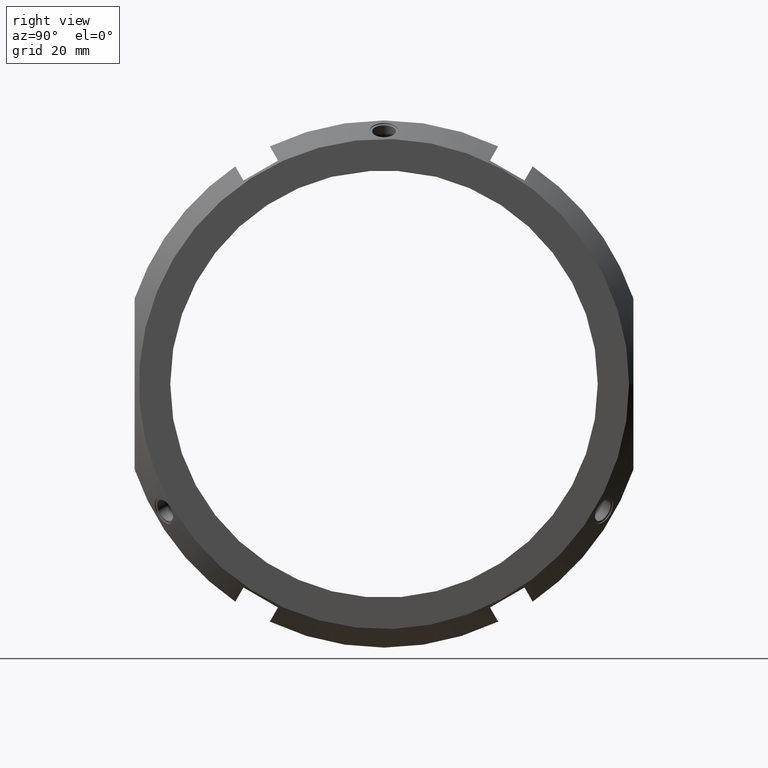
[diagram: clean part render]
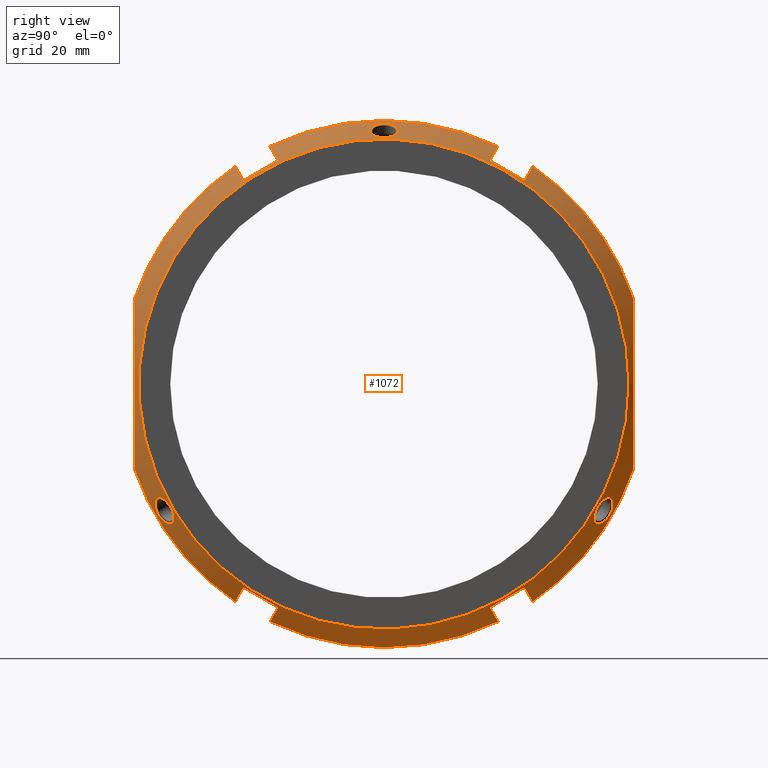
[diagram: same view with one face highlighted and labeled with its STEP entity id]
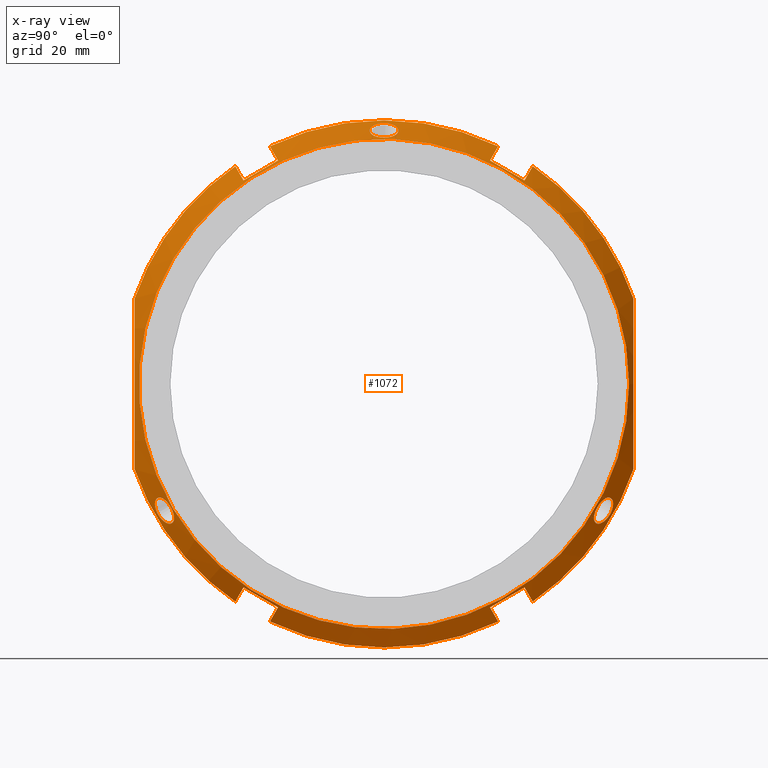
[diagram: x-ray of the same camera — body ghosted, the highlighted face saturated]
A machine part, right view. The second image highlights one B-rep face of the part: STEP entity #1072.
The next image is the same camera in x-ray: the body ghosted, the highlighted face saturated — about 0% of this face is hidden behind the body in this view.
In plain terms, the highlighted conical surface has half-angle 30 deg.
Its self-contained STEP definition (entity closure, byte-faithful):
#90=CARTESIAN_POINT('',(30.644194295349262,49.312177826491151,-71.411197427353898));
#91=VERTEX_POINT('',#90);
#98=CARTESIAN_POINT('',(30.644194295349308,37.187822173509019,-78.411197427353898));
#99=VERTEX_POINT('',#98);
#100=CARTESIAN_POINT('',(30.644194295349308,37.187822173509019,-78.411197427353898));
#101=CARTESIAN_POINT('',(31.622158986817794,43.250000000000369,-74.911197427353727));
#102=CARTESIAN_POINT('',(30.644194295349262,49.312177826491151,-71.411197427353898));
#110=(BOUNDED_CURVE()B_SPLINE_CURVE(2,(#100,#101,#102),.UNSPECIFIED.,.F.,.U.)B_SPLINE_CURVE_WITH_KNOTS((3,3),(2.679441139017706,4.196604236050768),.UNSPECIFIED.)CURVE()GEOMETRIC_REPRESENTATION_ITEM()RATIONAL_B_SPLINE_CURVE((1.032993615311318,1.036370546538393,1.032993615311318))REPRESENTATION_ITEM(''));
#111=EDGE_CURVE('',#99,#91,#110,.T.);
#143=CARTESIAN_POINT('',(20.741669750802277,40.05519959243864,-83.377640801415708));
#144=VERTEX_POINT('',#143);
#145=CARTESIAN_POINT('',(20.741669750802245,40.055199592438655,-83.377640801415737));
#146=CARTESIAN_POINT('',(25.85179467139222,38.575791367520466,-80.815230590722166));
#147=CARTESIAN_POINT('',(30.644194295349308,37.187822173509005,-78.411197427353898));
#155=(BOUNDED_CURVE()B_SPLINE_CURVE(2,(#145,#146,#147),.UNSPECIFIED.,.F.,.U.)B_SPLINE_CURVE_WITH_KNOTS((3,3),(0.0,1.144322531640701),.UNSPECIFIED.)CURVE()GEOMETRIC_REPRESENTATION_ITEM()RATIONAL_B_SPLINE_CURVE((1.0,1.000511983654657,1.0))REPRESENTATION_ITEM(''));
#156=EDGE_CURVE('',#144,#99,#155,.T.);
#187=CARTESIAN_POINT('',(20.741669750802252,52.179555245420801,-76.377640801415708));
#188=VERTEX_POINT('',#187);
#195=CARTESIAN_POINT('',(30.644194295349262,49.312177826491151,-71.411197427353898));
#196=CARTESIAN_POINT('',(25.851794671363805,50.700147020510833,-73.815230590736405));
#197=CARTESIAN_POINT('',(20.741669750802245,52.179555245420786,-76.377640801415723));
#205=(BOUNDED_CURVE()B_SPLINE_CURVE(2,(#195,#196,#197),.UNSPECIFIED.,.F.,.U.)B_SPLINE_CURVE_WITH_KNOTS((3,3),(0.0,1.144322531640696),.UNSPECIFIED.)CURVE()GEOMETRIC_REPRESENTATION_ITEM()RATIONAL_B_SPLINE_CURVE((1.0,1.000511983600446,1.0))REPRESENTATION_ITEM(''));
#206=EDGE_CURVE('',#91,#188,#205,.T.);
#234=CARTESIAN_POINT('',(30.644194295349273,-49.312177826491009,-71.411197427353997));
#235=VERTEX_POINT('',#234);
#242=CARTESIAN_POINT('',(20.741669750802252,-52.179555245420637,-76.377640801415808));
#243=VERTEX_POINT('',#242);
#244=CARTESIAN_POINT('',(20.741669750802245,-52.179555245420637,-76.377640801415808));
#245=CARTESIAN_POINT('',(25.851794684423552,-50.70014701672909,-73.815230584186565));
#246=CARTESIAN_POINT('',(30.644194295349273,-49.312177826491009,-71.411197427353997));
#254=(BOUNDED_CURVE()B_SPLINE_CURVE(2,(#244,#245,#246),.UNSPECIFIED.,.F.,.U.)B_SPLINE_CURVE_WITH_KNOTS((3,3),(0.0,1.144322531640696),.UNSPECIFIED.)CURVE()GEOMETRIC_REPRESENTATION_ITEM()RATIONAL_B_SPLINE_CURVE((1.0,1.000511983826605,1.0))REPRESENTATION_ITEM(''));
#255=EDGE_CURVE('',#243,#235,#254,.T.);
#288=CARTESIAN_POINT('',(20.741669750802252,-40.055199592438491,-83.377640801415808));
#289=VERTEX_POINT('',#288);
#296=CARTESIAN_POINT('',(30.644194295349273,-37.187822173508863,-78.411197427353983));
#297=VERTEX_POINT('',#296);
#298=CARTESIAN_POINT('',(30.644194295349266,-37.187822173508863,-78.411197427353983));
#299=CARTESIAN_POINT('',(25.851794679649846,-38.57579136512922,-80.815230586580725));
#300=CARTESIAN_POINT('',(20.741669750802245,-40.055199592438491,-83.377640801415808));
#308=(BOUNDED_CURVE()B_SPLINE_CURVE(2,(#298,#299,#300),.UNSPECIFIED.,.F.,.U.)B_SPLINE_CURVE_WITH_KNOTS((3,3),(0.0,1.144322531640696),.UNSPECIFIED.)CURVE()GEOMETRIC_REPRESENTATION_ITEM()RATIONAL_B_SPLINE_CURVE((1.0,1.000511983735601,1.0))REPRESENTATION_ITEM(''));
#309=EDGE_CURVE('',#297,#289,#308,.T.);
#339=CARTESIAN_POINT('',(30.644194295349273,-49.312177826491009,-71.411197427353997));
#340=CARTESIAN_POINT('',(31.622158986817798,-43.249999999999666,-74.911197427354153));
#341=CARTESIAN_POINT('',(30.644194295349273,-37.187822173508863,-78.411197427353983));
#349=(BOUNDED_CURVE()B_SPLINE_CURVE(2,(#339,#340,#341),.UNSPECIFIED.,.F.,.U.)B_SPLINE_CURVE_WITH_KNOTS((3,3),(2.679441139017692,4.196604236050759),.UNSPECIFIED.)CURVE()GEOMETRIC_REPRESENTATION_ITEM()RATIONAL_B_SPLINE_CURVE((1.03299361531132,1.036370546538395,1.03299361531132))REPRESENTATION_ITEM(''));
#350=EDGE_CURVE('',#235,#297,#349,.T.);
#557=CARTESIAN_POINT('',(20.741669750802259,0.0,0.0));
#558=DIRECTION('',(1.0,0.0,0.0));
#559=DIRECTION('',(0.0,1.0,0.0));
#560=AXIS2_PLACEMENT_3D('',#557,#558,#559);
#561=CIRCLE('',#560,92.5);
#562=EDGE_CURVE('',#289,#144,#561,.T.);
#575=CARTESIAN_POINT('',(20.741669750802259,-87.500000000000014,-29.999999999999943));
#576=VERTEX_POINT('',#575);
#577=CARTESIAN_POINT('',(20.741669750802259,0.0,0.0));
#578=DIRECTION('',(1.0,0.0,0.0));
#579=DIRECTION('',(0.0,1.0,0.0));
#580=AXIS2_PLACEMENT_3D('',#577,#578,#579);
#581=CIRCLE('',#580,92.5);
#582=EDGE_CURVE('',#576,#243,#581,.T.);
#600=CARTESIAN_POINT('',(30.644194295349308,37.187822173509019,78.411197427353898));
#601=VERTEX_POINT('',#600);
#608=CARTESIAN_POINT('',(30.644194295349262,49.312177826491151,71.411197427353898));
#609=VERTEX_POINT('',#608);
#610=CARTESIAN_POINT('',(30.644194295349262,49.312177826491151,71.411197427353898));
#611=CARTESIAN_POINT('',(31.622158986817809,43.249999999999815,74.911197427354068));
#612=CARTESIAN_POINT('',(30.644194295349308,37.187822173509019,78.411197427353898));
#620=(BOUNDED_CURVE()B_SPLINE_CURVE(2,(#610,#611,#612),.UNSPECIFIED.,.F.,.U.)B_SPLINE_CURVE_WITH_KNOTS((3,3),(2.679441139017681,4.196604236050743),.UNSPECIFIED.)CURVE()GEOMETRIC_REPRESENTATION_ITEM()RATIONAL_B_SPLINE_CURVE((1.032993615311318,1.036370546538393,1.032993615311318))REPRESENTATION_ITEM(''));
#621=EDGE_CURVE('',#609,#601,#620,.T.);
#639=CARTESIAN_POINT('',(20.741669750802252,52.179555245420801,76.377640801415708));
#640=VERTEX_POINT('',#639);
#641=CARTESIAN_POINT('',(20.741669750802245,52.179555245420786,76.377640801415723));
#642=CARTESIAN_POINT('',(25.851794666776993,50.700147021838681,73.81523059303629));
#643=CARTESIAN_POINT('',(30.644194295349262,49.312177826491151,71.411197427353898));
#651=(BOUNDED_CURVE()B_SPLINE_CURVE(2,(#641,#642,#643),.UNSPECIFIED.,.F.,.U.)B_SPLINE_CURVE_WITH_KNOTS((3,3),(0.0,1.117847285030496),.UNSPECIFIED.)CURVE()GEOMETRIC_REPRESENTATION_ITEM()RATIONAL_B_SPLINE_CURVE((1.0,1.000892190321801,1.000760168768414))REPRESENTATION_ITEM(''));
#652=EDGE_CURVE('',#640,#609,#651,.T.);
#669=CARTESIAN_POINT('',(20.741669750802277,40.05519959243864,83.377640801415708));
#670=VERTEX_POINT('',#669);
#677=CARTESIAN_POINT('',(30.644194295349308,37.187822173509019,78.411197427353898));
#678=CARTESIAN_POINT('',(25.851794663935088,38.575791369679862,80.815230594462335));
#679=CARTESIAN_POINT('',(20.741669750802245,40.055199592438655,83.377640801415737));
#687=(BOUNDED_CURVE()B_SPLINE_CURVE(2,(#677,#678,#679),.UNSPECIFIED.,.F.,.U.)B_SPLINE_CURVE_WITH_KNOTS((3,3),(0.829664851619919,1.94751213712013),.UNSPECIFIED.)CURVE()GEOMETRIC_REPRESENTATION_ITEM()RATIONAL_B_SPLINE_CURVE((1.000760168721978,1.000892190267805,1.0))REPRESENTATION_ITEM(''));
#688=EDGE_CURVE('',#601,#670,#687,.T.);
#700=CARTESIAN_POINT('',(30.644194295349273,-49.312177826491009,71.411197427353997));
#701=VERTEX_POINT('',#700);
#708=CARTESIAN_POINT('',(30.644194295349273,-37.187822173508863,78.411197427353983));
#709=VERTEX_POINT('',#708);
#710=CARTESIAN_POINT('',(30.644194295349273,-37.187822173508863,78.411197427353983));
#711=CARTESIAN_POINT('',(31.622158986817798,-43.250000000000206,74.911197427353827));
#712=CARTESIAN_POINT('',(30.644194295349273,-49.312177826491009,71.411197427353997));
#720=(BOUNDED_CURVE()B_SPLINE_CURVE(2,(#710,#711,#712),.UNSPECIFIED.,.F.,.U.)B_SPLINE_CURVE_WITH_KNOTS((3,3),(2.67944113901769,4.196604236050757),.UNSPECIFIED.)CURVE()GEOMETRIC_REPRESENTATION_ITEM()RATIONAL_B_SPLINE_CURVE((1.03299361531132,1.036370546538396,1.03299361531132))REPRESENTATION_ITEM(''));
#721=EDGE_CURVE('',#709,#701,#720,.T.);
#739=CARTESIAN_POINT('',(20.741669750802252,-40.055199592438491,83.377640801415808));
#740=VERTEX_POINT('',#739);
#741=CARTESIAN_POINT('',(20.741669750802245,-40.055199592438491,83.377640801415808));
#742=CARTESIAN_POINT('',(25.851794666822595,-38.575791368843177,80.815230593013496));
#743=CARTESIAN_POINT('',(30.644194295349273,-37.187822173508863,78.411197427353983));
#751=(BOUNDED_CURVE()B_SPLINE_CURVE(2,(#741,#742,#743),.UNSPECIFIED.,.F.,.U.)B_SPLINE_CURVE_WITH_KNOTS((3,3),(0.0,1.117847285032819),.UNSPECIFIED.)CURVE()GEOMETRIC_REPRESENTATION_ITEM()RATIONAL_B_SPLINE_CURVE((1.0,1.000892190333993,1.0007601687788))REPRESENTATION_ITEM(''));
#752=EDGE_CURVE('',#740,#709,#751,.T.);
#769=CARTESIAN_POINT('',(20.741669750802252,-52.179555245420637,76.377640801415808));
#770=VERTEX_POINT('',#769);
#777=CARTESIAN_POINT('',(30.644194295349273,-49.312177826491009,71.411197427353997));
#778=CARTESIAN_POINT('',(25.851794664797737,-50.700147022411919,73.815230594029543));
#779=CARTESIAN_POINT('',(20.741669750802245,-52.179555245420637,76.377640801415808));
#787=(BOUNDED_CURVE()B_SPLINE_CURVE(2,(#777,#778,#779),.UNSPECIFIED.,.F.,.U.)B_SPLINE_CURVE_WITH_KNOTS((3,3),(0.829664851757662,1.947512137120129),.UNSPECIFIED.)CURVE()GEOMETRIC_REPRESENTATION_ITEM()RATIONAL_B_SPLINE_CURVE((1.000760168740808,1.000892190289758,1.0))REPRESENTATION_ITEM(''));
#788=EDGE_CURVE('',#701,#770,#787,.T.);
#800=CARTESIAN_POINT('',(20.741669750802259,87.500000000000071,29.999999999999801));
#801=VERTEX_POINT('',#800);
#802=CARTESIAN_POINT('',(20.741669750802259,0.0,0.0));
#803=DIRECTION('',(1.0,0.0,0.0));
#804=DIRECTION('',(0.0,1.0,0.0));
#805=AXIS2_PLACEMENT_3D('',#802,#803,#804);
#806=CIRCLE('',#805,92.5);
#807=EDGE_CURVE('',#801,#640,#806,.T.);
#826=CARTESIAN_POINT('',(20.741669750802259,-87.500000000000057,29.999999999999872));
#827=VERTEX_POINT('',#826);
#834=CARTESIAN_POINT('',(20.741669750802259,0.0,0.0));
#835=DIRECTION('',(1.0,0.0,0.0));
#836=DIRECTION('',(0.0,1.0,0.0));
#837=AXIS2_PLACEMENT_3D('',#834,#835,#836);
#838=CIRCLE('',#837,92.5);
#839=EDGE_CURVE('',#770,#827,#838,.T.);
#851=CARTESIAN_POINT('',(20.741669750802259,87.500000000000028,-29.999999999999872));
#852=VERTEX_POINT('',#851);
#853=CARTESIAN_POINT('',(20.741669750802245,87.500000000000014,-29.999999999999979));
#854=CARTESIAN_POINT('',(37.594055986607493,87.500000000000028,-2.527262E-014));
#855=CARTESIAN_POINT('',(20.741669750802252,87.500000000000057,29.999999999999901));
#863=(BOUNDED_CURVE()B_SPLINE_CURVE(2,(#853,#854,#855),.UNSPECIFIED.,.F.,.U.)B_SPLINE_CURVE_WITH_KNOTS((3,3),(0.0,6.244997998398386),.UNSPECIFIED.)CURVE()GEOMETRIC_REPRESENTATION_ITEM()RATIONAL_B_SPLINE_CURVE((1.0,1.057142857142857,1.0))REPRESENTATION_ITEM(''));
#864=EDGE_CURVE('',#852,#801,#863,.T.);
#882=CARTESIAN_POINT('',(20.741669750802263,-87.500000000000057,29.999999999999854));
#883=CARTESIAN_POINT('',(37.594055986607451,-87.500000000000028,-2.575760E-014));
#884=CARTESIAN_POINT('',(20.741669750802259,-87.500000000000028,-29.999999999999925));
#892=(BOUNDED_CURVE()B_SPLINE_CURVE(2,(#882,#883,#884),.UNSPECIFIED.,.F.,.U.)B_SPLINE_CURVE_WITH_KNOTS((3,3),(0.0,6.244997998398374),.UNSPECIFIED.)CURVE()GEOMETRIC_REPRESENTATION_ITEM()RATIONAL_B_SPLINE_CURVE((1.0,1.05714285714286,1.0))REPRESENTATION_ITEM(''));
#893=EDGE_CURVE('',#827,#576,#892,.T.);
#899=CARTESIAN_POINT('',(26.370834875401119,0.0,0.0));
#900=DIRECTION('',(-1.0,0.0,0.0));
#901=DIRECTION('',(0.0,1.0,0.0));
#902=AXIS2_PLACEMENT_3D('',#899,#900,#901);
#903=CONICAL_SURFACE('',#902,89.25,29.999999999999972);
#904=ORIENTED_EDGE('',*,*,#206,.T.);
#905=CARTESIAN_POINT('',(20.741669750802259,0.0,0.0));
#906=DIRECTION('',(1.0,0.0,0.0));
#907=DIRECTION('',(0.0,1.0,0.0));
#908=AXIS2_PLACEMENT_3D('',#905,#906,#907);
#909=CIRCLE('',#908,92.5);
#910=EDGE_CURVE('',#188,#852,#909,.T.);
#911=ORIENTED_EDGE('',*,*,#910,.T.);
#912=ORIENTED_EDGE('',*,*,#864,.T.);
#913=ORIENTED_EDGE('',*,*,#807,.T.);
#914=ORIENTED_EDGE('',*,*,#652,.T.);
#915=ORIENTED_EDGE('',*,*,#621,.T.);
#916=ORIENTED_EDGE('',*,*,#688,.T.);
#917=CARTESIAN_POINT('',(20.741669750802259,0.0,0.0));
#918=DIRECTION('',(1.0,0.0,0.0));
#919=DIRECTION('',(0.0,1.0,0.0));
#920=AXIS2_PLACEMENT_3D('',#917,#918,#919);
#921=CIRCLE('',#920,92.5);
#922=EDGE_CURVE('',#670,#740,#921,.T.);
#923=ORIENTED_EDGE('',*,*,#922,.T.);
#924=ORIENTED_EDGE('',*,*,#752,.T.);
#925=ORIENTED_EDGE('',*,*,#721,.T.);
#926=ORIENTED_EDGE('',*,*,#788,.T.);
#927=ORIENTED_EDGE('',*,*,#839,.T.);
#928=ORIENTED_EDGE('',*,*,#893,.T.);
#929=ORIENTED_EDGE('',*,*,#582,.T.);
#930=ORIENTED_EDGE('',*,*,#255,.T.);
#931=ORIENTED_EDGE('',*,*,#350,.T.);
#932=ORIENTED_EDGE('',*,*,#309,.T.);
#933=ORIENTED_EDGE('',*,*,#562,.T.);
#934=ORIENTED_EDGE('',*,*,#156,.T.);
#935=ORIENTED_EDGE('',*,*,#111,.T.);
#936=EDGE_LOOP('',(#904,#911,#912,#913,#914,#915,#916,#923,#924,#925,#926,#927,#928,#929,#930,#931,#932,#933,#934,#935));
#937=FACE_OUTER_BOUND('',#936,.T.);
#938=CARTESIAN_POINT('',(31.999999999999979,86.0,0.0));
#939=VERTEX_POINT('',#938);
#940=CARTESIAN_POINT('',(31.999999999999979,0.0,0.0));
#941=DIRECTION('',(1.0,0.0,0.0));
#942=DIRECTION('',(0.0,1.0,0.0));
#943=AXIS2_PLACEMENT_3D('',#940,#941,#942);
#944=CIRCLE('',#943,86.0);
#945=EDGE_CURVE('',#939,#939,#944,.T.);
#946=ORIENTED_EDGE('',*,*,#945,.F.);
#947=EDGE_LOOP('',(#946));
#948=FACE_BOUND('',#947,.T.);
#949=CARTESIAN_POINT('',(26.852333673394504,5.097906627413206,88.825836870016673));
#950=VERTEX_POINT('',#949);
#951=CARTESIAN_POINT('',(26.852333673394504,5.097906627413206,88.825836870016673));
#952=CARTESIAN_POINT('',(27.396434329877263,5.079907265302613,88.512216296033927));
#953=CARTESIAN_POINT('',(27.977564210416244,4.937512284177009,88.184597023277419));
#954=CARTESIAN_POINT('',(29.048576457808398,4.399872653090072,87.593935520821105));
#955=CARTESIAN_POINT('',(29.53830366552139,4.004633694353835,87.330606814648803));
#956=CARTESIAN_POINT('',(30.312182836893584,3.103768431416051,86.920185801696022));
#957=CARTESIAN_POINT('',(30.648924235265302,2.536895927176536,86.745143101685485));
#958=CARTESIAN_POINT('',(31.095834237839753,1.299149551693849,86.514460518548319));
#959=CARTESIAN_POINT('',(31.20582192203155,0.628266611430469,86.458518927099576));
#960=CARTESIAN_POINT('',(31.20582192203155,-0.628266611430469,86.458518927099576));
#961=CARTESIAN_POINT('',(31.095834237839757,-1.299149551693857,86.514460518548319));
#962=CARTESIAN_POINT('',(30.648924235265298,-2.536895927176542,86.745143101685485));
#963=CARTESIAN_POINT('',(30.312182836893577,-3.103768431416051,86.920185801696022));
#964=CARTESIAN_POINT('',(29.53830366552139,-4.004633694353835,87.330606814648803));
#965=CARTESIAN_POINT('',(29.048576457808394,-4.399872653090073,87.593935520821091));
#966=CARTESIAN_POINT('',(27.97756421041624,-4.937512284177008,88.184597023277405));
#967=CARTESIAN_POINT('',(27.396434329877266,-5.079907265302614,88.512216296033955));
#968=CARTESIAN_POINT('',(26.287060410268346,-5.116606399290373,89.151661371653461));
#969=CARTESIAN_POINT('',(25.685052124930124,-5.003660433936929,89.506588405438521));
#970=CARTESIAN_POINT('',(24.579815408733378,-4.501496447456132,90.172154268164036));
#971=CARTESIAN_POINT('',(24.076398114163851,-4.112284309052374,90.48248385971668));
#972=CARTESIAN_POINT('',(23.281892337752691,-3.202790152898633,90.978228230153434));
#973=CARTESIAN_POINT('',(22.938830101027953,-2.623046582449815,91.196002132416595));
#974=CARTESIAN_POINT('',(22.484145629428689,-1.348016695256195,91.486292358698989));
#975=CARTESIAN_POINT('',(22.372362803430249,-0.652721698339948,91.558518927099598));
#976=CARTESIAN_POINT('',(22.372362803430249,0.652721698339947,91.558518927099598));
#977=CARTESIAN_POINT('',(22.484145629428692,1.348016695256197,91.486292358698989));
#978=CARTESIAN_POINT('',(22.938830101027957,2.623046582449817,91.196002132416595));
#979=CARTESIAN_POINT('',(23.281892337752691,3.202790152898631,90.978228230153434));
#980=CARTESIAN_POINT('',(24.076398114163851,4.112284309052375,90.48248385971668));
#981=CARTESIAN_POINT('',(24.579815408733367,4.501496447456123,90.17215426816405));
#982=CARTESIAN_POINT('',(25.68505212493011,5.003660433936926,89.506588405438535));
#983=CARTESIAN_POINT('',(26.287060410268332,5.116606399290371,89.151661371653447));
#984=CARTESIAN_POINT('',(26.852333673394501,5.097906627413206,88.825836870016687));
#985=B_SPLINE_CURVE_WITH_KNOTS('',3,(#951,#952,#953,#954,#955,#956,#957,#958,#959,#960,#961,#962,#963,#964,#965,#966,#967,#968,#969,#970,#971,#972,#973,#974,#975,#976,#977,#978,#979,#980,#981,#982,#983,#984),.UNSPECIFIED.,.T.,.U.,(4,2,2,2,2,2,2,2,2,2,2,2,2,2,2,2,4),(0.0,0.188481996291942,0.376963992583884,0.565443976013024,0.753923959442165,0.942403942871306,1.130883926300446,1.319365922592388,1.50784791888433,1.703664321263284,1.899480723642238,2.095297233144222,2.291113742646207,2.486930252148191,2.682746761650175,2.87856316402913,3.074379566408084),.UNSPECIFIED.);
#986=EDGE_CURVE('',#950,#950,#985,.T.);
#987=ORIENTED_EDGE('',*,*,#986,.T.);
#988=EDGE_LOOP('',(#987));
#989=FACE_BOUND('',#988,.T.);
#990=CARTESIAN_POINT('',(26.852333673394494,-79.474384555553499,-39.998001789547438));
#991=VERTEX_POINT('',#990);
#992=CARTESIAN_POINT('',(26.852333673394494,-79.474384555553499,-39.998001789547438));
#993=CARTESIAN_POINT('',(27.396434329877245,-79.19378149027969,-39.856779407395749));
#994=CARTESIAN_POINT('',(27.977564210416244,-78.83885738674033,-39.816287442043659));
#995=CARTESIAN_POINT('',(29.048576457808398,-78.058509705032222,-39.986566269418091));
#996=CARTESIAN_POINT('',(29.538303665521379,-77.632840876573212,-40.197188895162824));
#997=CARTESIAN_POINT('',(30.312182836893573,-76.826973221640259,-40.772150591777496));
#998=CARTESIAN_POINT('',(30.648924235265305,-76.391945544564365,-41.175555231150582));
#999=CARTESIAN_POINT('',(31.095834237839757,-75.573295379615629,-42.132133744192117));
#1000=CARTESIAN_POINT('',(31.205821922031554,-75.189407070161195,-42.68516461770141));
#1001=CARTESIAN_POINT('',(31.205821922031554,-74.561140458730719,-43.773354309398123));
#1002=CARTESIAN_POINT('',(31.095834237839753,-74.274145827921785,-44.382326774356201));
#1003=CARTESIAN_POINT('',(30.648924235265298,-73.855049617387834,-45.569587870534896));
#1004=CARTESIAN_POINT('',(30.312182836893573,-73.723204790224216,-46.148035209918476));
#1005=CARTESIAN_POINT('',(29.538303665521376,-73.62820718221937,-47.133417919485929));
#1006=CARTESIAN_POINT('',(29.048576457808384,-73.658637051942151,-47.607369251402964));
#1007=CARTESIAN_POINT('',(27.977564210416229,-73.901345102563326,-48.368309581233703));
#1008=CARTESIAN_POINT('',(27.396434329877259,-74.113874224977081,-48.655436888638164));
#1009=CARTESIAN_POINT('',(26.287060410268339,-74.649300337794543,-49.006941808778194));
#1010=CARTESIAN_POINT('',(25.685052124930102,-75.013149148219028,-49.086591250419687));
#1011=CARTESIAN_POINT('',(24.57981540873336,-75.84062808647144,-48.984487412624411));
#1012=CARTESIAN_POINT('',(24.076398114163844,-76.303987465503909,-48.802584609081805));
#1013=CARTESIAN_POINT('',(23.28189233775268,-77.188061762162135,-48.262811750477553));
#1014=CARTESIAN_POINT('',(22.938830101027957,-77.666531279027694,-47.869626041919744));
#1015=CARTESIAN_POINT('',(22.484145629428692,-78.555444933055412,-46.910562882166865));
#1016=CARTESIAN_POINT('',(22.372362803430246,-78.965642474576626,-46.3445330359135));
#1017=CARTESIAN_POINT('',(22.372362803430246,-79.618364172916571,-45.213985891186056));
#1018=CARTESIAN_POINT('',(22.484145629428696,-79.903461628311589,-44.575729476532075));
#1019=CARTESIAN_POINT('',(22.93883010102796,-80.289577861477497,-43.32637609049678));
#1020=CARTESIAN_POINT('',(23.28189233775268,-80.39085191506075,-42.715416479675845));
#1021=CARTESIAN_POINT('',(24.076398114163844,-80.416271774556265,-41.679899250634818));
#1022=CARTESIAN_POINT('',(24.57981540873336,-80.342124533927546,-41.187666855539604));
#1023=CARTESIAN_POINT('',(25.685052124930095,-80.016809582155943,-40.419997155018812));
#1024=CARTESIAN_POINT('',(26.287060410268328,-79.765906737084919,-40.144719562875217));
#1025=CARTESIAN_POINT('',(26.852333673394497,-79.474384555553499,-39.99800178954743));
#1026=B_SPLINE_CURVE_WITH_KNOTS('',3,(#992,#993,#994,#995,#996,#997,#998,#999,#1000,#1001,#1002,#1003,#1004,#1005,#1006,#1007,#1008,#1009,#1010,#1011,#1012,#1013,#1014,#1015,#1016,#1017,#1018,#1019,#1020,#1021,#1022,#1023,#1024,#1025),.UNSPECIFIED.,.T.,.U.,(4,2,2,2,2,2,2,2,2,2,2,2,2,2,2,2,4),(0.0,0.188481996291942,0.376963992583884,0.565443976013025,0.753923959442166,0.942403942871307,1.130883926300448,1.31936592259239,1.507847918884332,1.703664321263286,1.89948072364224,2.095297233144224,2.291113742646208,2.486930252148192,2.682746761650177,2.878563164029131,3.074379566408085),.UNSPECIFIED.);
#1027=EDGE_CURVE('',#991,#991,#1026,.T.);
#1028=ORIENTED_EDGE('',*,*,#1027,.T.);
#1029=EDGE_LOOP('',(#1028));
#1030=FACE_BOUND('',#1029,.T.);
#1031=CARTESIAN_POINT('',(26.852333673394497,74.376477928140261,-48.827835080469264));
#1032=VERTEX_POINT('',#1031);
#1033=CARTESIAN_POINT('',(26.852333673394497,74.376477928140261,-48.827835080469264));
#1034=CARTESIAN_POINT('',(27.396434329877252,74.113874224977039,-48.655436888638199));
#1035=CARTESIAN_POINT('',(27.977564210416233,73.901345102563283,-48.368309581233753));
#1036=CARTESIAN_POINT('',(29.048576457808384,73.658637051942122,-47.607369251403028));
#1037=CARTESIAN_POINT('',(29.538303665521369,73.628207182219342,-47.133417919485993));
#1038=CARTESIAN_POINT('',(30.312182836893562,73.723204790224187,-46.148035209918525));
#1039=CARTESIAN_POINT('',(30.648924235265298,73.855049617387806,-45.569587870534953));
#1040=CARTESIAN_POINT('',(31.095834237839753,74.274145827921757,-44.382326774356251));
#1041=CARTESIAN_POINT('',(31.205821922031546,74.561140458730677,-43.773354309398172));
#1042=CARTESIAN_POINT('',(31.205821922031546,75.189407070161153,-42.685164617701474));
#1043=CARTESIAN_POINT('',(31.09583423783976,75.573295379615615,-42.132133744192181));
#1044=CARTESIAN_POINT('',(30.648924235265305,76.391945544564351,-41.175555231150639));
#1045=CARTESIAN_POINT('',(30.312182836893573,76.826973221640245,-40.772150591777567));
#1046=CARTESIAN_POINT('',(29.538303665521379,77.632840876573184,-40.197188895162896));
#1047=CARTESIAN_POINT('',(29.04857645780838,78.058509705032179,-39.986566269418148));
#1048=CARTESIAN_POINT('',(27.977564210416233,78.838857386740287,-39.816287442043716));
#1049=CARTESIAN_POINT('',(27.396434329877248,79.193781490279648,-39.856779407395805));
#1050=CARTESIAN_POINT('',(26.287060410268328,79.76590673708489,-40.144719562875267));
#1051=CARTESIAN_POINT('',(25.68505212493011,80.016809582155929,-40.419997155018862));
#1052=CARTESIAN_POINT('',(24.579815408733367,80.342124533927532,-41.187666855539661));
#1053=CARTESIAN_POINT('',(24.076398114163844,80.416271774556236,-41.67989925063489));
#1054=CARTESIAN_POINT('',(23.281892337752687,80.390851915060722,-42.715416479675895));
#1055=CARTESIAN_POINT('',(22.938830101027957,80.289577861477454,-43.326376090496829));
#1056=CARTESIAN_POINT('',(22.484145629428689,79.903461628311561,-44.575729476532118));
#1057=CARTESIAN_POINT('',(22.372362803430235,79.618364172916529,-45.213985891186113));
#1058=CARTESIAN_POINT('',(22.372362803430235,78.965642474576597,-46.344533035913535));
#1059=CARTESIAN_POINT('',(22.484145629428689,78.555444933055384,-46.910562882166936));
#1060=CARTESIAN_POINT('',(22.93883010102796,77.66653127902768,-47.869626041919815));
#1061=CARTESIAN_POINT('',(23.281892337752687,77.188061762162107,-48.26281175047761));
#1062=CARTESIAN_POINT('',(24.076398114163844,76.303987465503866,-48.802584609081862));
#1063=CARTESIAN_POINT('',(24.57981540873336,75.840628086471384,-48.98448741262446));
#1064=CARTESIAN_POINT('',(25.685052124930102,75.013149148218986,-49.086591250419744));
#1065=CARTESIAN_POINT('',(26.287060410268325,74.649300337794514,-49.006941808778251));
#1066=CARTESIAN_POINT('',(26.85233367339449,74.376477928140261,-48.827835080469271));
#1067=B_SPLINE_CURVE_WITH_KNOTS('',3,(#1033,#1034,#1035,#1036,#1037,#1038,#1039,#1040,#1041,#1042,#1043,#1044,#1045,#1046,#1047,#1048,#1049,#1050,#1051,#1052,#1053,#1054,#1055,#1056,#1057,#1058,#1059,#1060,#1061,#1062,#1063,#1064,#1065,#1066),.UNSPECIFIED.,.T.,.U.,(4,2,2,2,2,2,2,2,2,2,2,2,2,2,2,2,4),(0.0,0.188481996291942,0.376963992583884,0.565443976013024,0.753923959442165,0.942403942871306,1.130883926300446,1.319365922592388,1.50784791888433,1.703664321263284,1.899480723642238,2.095297233144222,2.291113742646205,2.48693025214819,2.682746761650174,2.878563164029128,3.074379566408082),.UNSPECIFIED.);
#1068=EDGE_CURVE('',#1032,#1032,#1067,.T.);
#1069=ORIENTED_EDGE('',*,*,#1068,.T.);
#1070=EDGE_LOOP('',(#1069));
#1071=FACE_BOUND('',#1070,.T.);
#1072=ADVANCED_FACE('',(#937,#948,#989,#1030,#1071),#903,.T.);